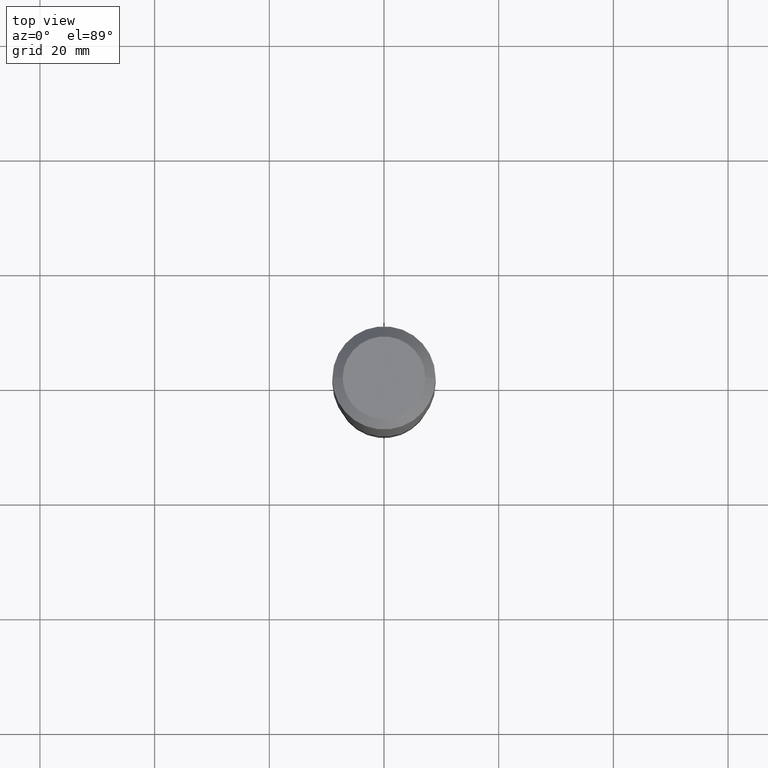
[diagram: clean part render]
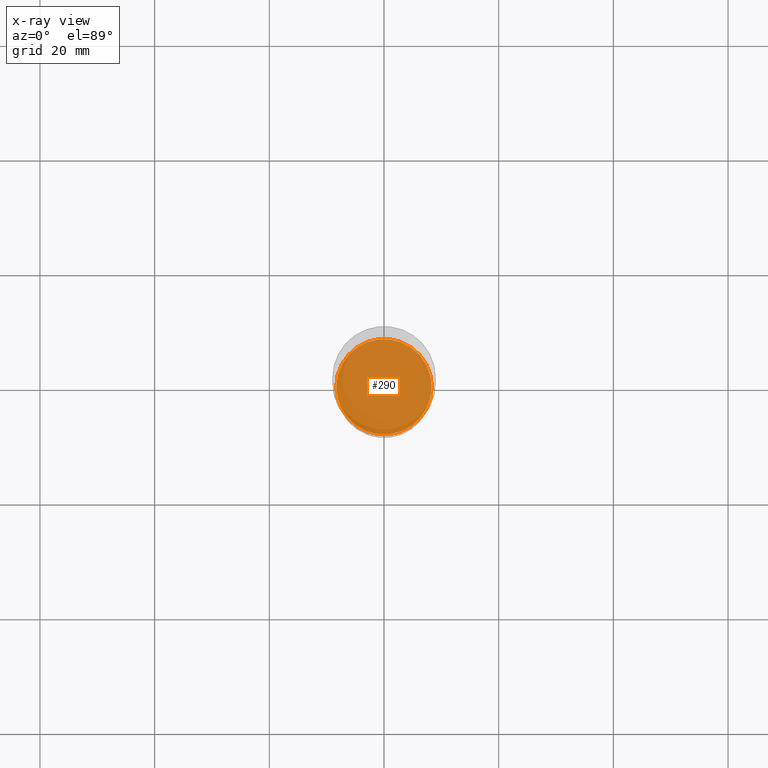
[diagram: x-ray — body ghosted, one internal face saturated and labeled with its STEP entity id]
A machine part, top view, then the same camera in x-ray: the body is ghosted and one INTERNAL B-rep face — a face not visible from any outside direction — is saturated and labeled: STEP entity #290.
In plain terms, the highlighted planar face has unit normal (-0, 0, 1).
Its self-contained STEP definition (entity closure, byte-faithful):
#26 = CARTESIAN_POINT ( 'NONE',  ( 0.3276000000000000023, -1.485799883744699984E-14, -3.600300000000000278 ) ) ;
#28 = DIRECTION ( 'NONE',  ( 1.000000000000000000, -6.982962677686264344E-15, 0.000000000000000000 ) ) ;
#66 = DIRECTION ( 'NONE',  ( 1.000000000000000000, -6.982962677686264344E-15, 0.000000000000000000 ) ) ;
#90 = CARTESIAN_POINT ( 'NONE',  ( 4.611458204391559748E-29, -1.857494212723419535E-14, -3.600300000000000278 ) ) ;
#98 = AXIS2_PLACEMENT_3D ( 'NONE', #149, #360, #28 ) ;
#103 = CARTESIAN_POINT ( 'NONE',  ( -0.3276000000000000023, -1.023999303471277694E-14, -3.600300000000000278 ) ) ;
#111 = AXIS2_PLACEMENT_3D ( 'NONE', #90, #226, #411 ) ;
#142 = PLANE ( 'NONE',  #111 ) ;
#149 = CARTESIAN_POINT ( 'NONE',  ( 8.804421342908348775E-29, -1.257038026423697795E-14, -3.600300000000000278 ) ) ;
#161 = CIRCLE ( 'NONE', #346, 0.3276000000000000023 ) ;
#163 = ORIENTED_EDGE ( 'NONE', *, *, #208, .F. ) ;
#208 = EDGE_CURVE ( 'NONE', #410, #254, #333, .T. ) ;
#226 = DIRECTION ( 'NONE',  ( -2.438088387897960049E-29, 3.491481338843145188E-15, 1.000000000000000000 ) ) ;
#254 = VERTEX_POINT ( 'NONE', #103 ) ;
#290 = ADVANCED_FACE ( 'NONE', ( #300 ), #142, .F. ) ;
#300 = FACE_OUTER_BOUND ( 'NONE', #370, .T. ) ;
#333 = CIRCLE ( 'NONE', #98, 0.3276000000000000023 ) ;
#338 = CARTESIAN_POINT ( 'NONE',  ( 8.804421342908348775E-29, -1.257038026423697795E-14, -3.600300000000000278 ) ) ;
#346 = AXIS2_PLACEMENT_3D ( 'NONE', #338, #419, #66 ) ;
#360 = DIRECTION ( 'NONE',  ( -2.445468806185136597E-29, 3.491481338843145583E-15, 1.000000000000000000 ) ) ;
#366 = ORIENTED_EDGE ( 'NONE', *, *, #486, .F. ) ;
#370 = EDGE_LOOP ( 'NONE', ( #163, #366 ) ) ;
#410 = VERTEX_POINT ( 'NONE', #26 ) ;
#411 = DIRECTION ( 'NONE',  ( 1.000000000000000000, -6.982962677686265922E-15, 4.876176775795935793E-29 ) ) ;
#419 = DIRECTION ( 'NONE',  ( -2.445468806185136597E-29, 3.491481338843145583E-15, 1.000000000000000000 ) ) ;
#486 = EDGE_CURVE ( 'NONE', #254, #410, #161, .T. ) ;